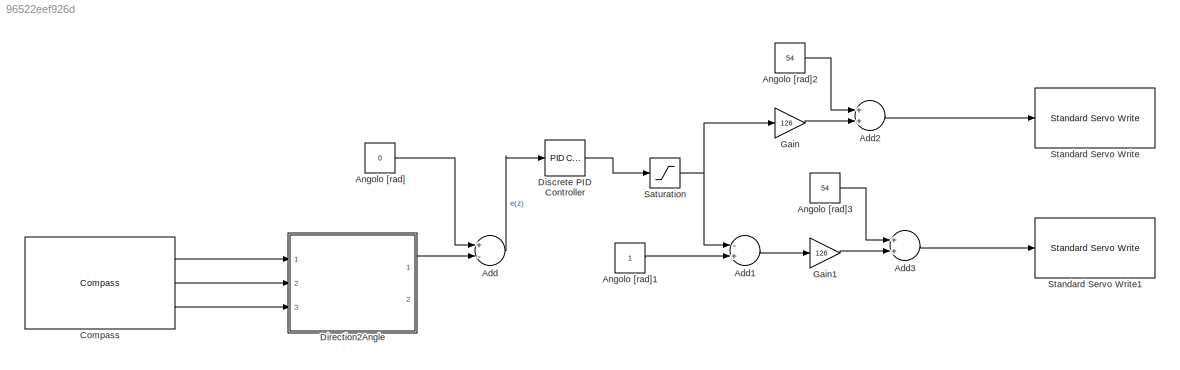
MODEL slx_96522eef926d
KIND model
BLOCK [Sum] Add
  InputSameDT = off
  Inputs = +-
  OutDataTypeStr = Inherit: Inherit via internal rule
  Ports = [2, 1]
  SaturateOnIntegerOverflow = off
BLOCK [Sum] Add1
  InputSameDT = off
  Inputs = -+
  OutDataTypeStr = Inherit: Inherit via internal rule
  Ports = [2, 1]
  SaturateOnIntegerOverflow = off
BLOCK [Sum] Add2
  InputSameDT = off
  OutDataTypeStr = Inherit: Inherit via internal rule
  Ports = [2, 1]
  SaturateOnIntegerOverflow = off
BLOCK [Sum] Add3
  InputSameDT = off
  OutDataTypeStr = Inherit: Inherit via internal rule
  Ports = [2, 1]
  SaturateOnIntegerOverflow = off
BLOCK [Constant] Angolo [rad]
  SampleTime = 0.1
  Value = 0
BLOCK [Constant] Angolo [rad]1
  SampleTime = 0.1
BLOCK [Constant] Angolo [rad]2
  SampleTime = 0.1
  Value = 54
BLOCK [Constant] Angolo [rad]3
  SampleTime = 0.1
  Value = 54
BLOCK [Reference] Compass  REF=SkywardBLIMP/Compass
  Ports = [0, 3]
  SourceBlock = SkywardBLIMP/Compass
  SourceType = Compass
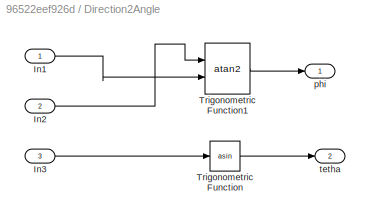
BLOCK [SubSystem] Direction2Angle
  Ports = [3, 2]
  RequestExecContextInheritance = off
BLOCK [Inport] Direction2Angle/In1
  IconDisplay = Port number
BLOCK [Inport] Direction2Angle/In2
  IconDisplay = Port number
  Port = 2
BLOCK [Inport] Direction2Angle/In3
  IconDisplay = Port number
  Port = 3
BLOCK [Trigonometry] Direction2Angle/Trigonometric Function
  Operator = asin
  Ports = [1, 1]
BLOCK [Trigonometry] Direction2Angle/Trigonometric Function1
  Operator = atan2
  Ports = [2, 1]
BLOCK [Outport] Direction2Angle/phi
  IconDisplay = Port number
BLOCK [Outport] Direction2Angle/tetha
  IconDisplay = Port number
  Port = 2
BLOCK [Reference] Discrete PID Controller  REF=simulink/Continuous/PID Controller
  AntiWindupMode = none
  Controller = PID
  D = 2
  DOutDataTypeStr = Inherit: Inherit via internal rule
  DOutMax = []
  DOutMin = []
  DParamDataTypeStr = Inherit: Inherit via internal rule
  DParamMax = []
  DParamMin = []
  DifferentiatorICPrevScaledInput = 0
  DifferentiatorOutDataTypeStr = Inherit: Inherit via internal rule
  DifferentiatorOutMax = []
  DifferentiatorOutMin = []
  ExternalReset = none
  FilterContinuousStateAttributes = ''
  FilterMethod = Forward Euler
  FilterOutDataTypeStr = Inherit: Inherit via internal rule
  FilterOutMax = []
  FilterOutMin = []
  FilterRTWStateStorageClass = Auto
  FilterStateMustResolveToSignalObject = off
  Form = Parallel
  I = 0.2
  IOutDataTypeStr = Inherit: Inherit via internal rule
  IOutMax = []
  IOutMin = []
  IParamDataTypeStr = Inherit: Inherit via internal rule
  IParamMax = []
  IParamMin = []
  IgnoreLimit = off
  InitialConditionForFilter = 0
  InitialConditionForIntegrator = 0
  InitialConditionSource = internal
  IntegratorContinuousStateAttributes = ''
  IntegratorMethod = Trapezoidal
  IntegratorOutDataTypeStr = Inherit: Inherit via internal rule
  IntegratorOutMax = []
  IntegratorOutMin = []
  IntegratorRTWStateStorageClass = Auto
  IntegratorStateMustResolveToSignalObject = off
  Kb = 1
  KbOutDataTypeStr = Inherit: Inherit via internal rule
  KbOutMax = []
  KbOutMin = []
  KbParamDataTypeStr = Inherit: Inherit via internal rule
  KbParamMax = []
  KbParamMin = []
  Kt = 1
  KtOutDataTypeStr = Inherit: Inherit via internal rule
  KtOutMax = []
  KtOutMin = []
  KtParamDataTypeStr = Inherit: Inherit via internal rule
  KtParamMax = []
  KtParamMin = []
  LimitOutput = off
  LinearizeAsGain = off
  LockScale = off
  LowerSaturationLimit = -inf
  N = 100
  NOutDataTypeStr = Inherit: Inherit via internal rule
  NOutMax = []
  NOutMin = []
  NParamDataTypeStr = Inherit: Inherit via internal rule
  NParamMax = []
  NParamMin = []
  P = 1.5
  POutDataTypeStr = Inherit: Inherit via internal rule
  POutMax = []
  POutMin = []
  PParamDataTypeStr = Inherit: Inherit via internal rule
  PParamMax = []
  PParamMin = []
  Ports = [1, 1]
  RndMeth = Floor
  SampleTime = -1
  SaturateOnIntegerOverflow = off
  SaturationOutDataTypeStr = Inherit: Same as input
  SaturationOutMax = []
  SaturationOutMin = []
  SourceBlock = simulink/Continuous/PID Controller
  SourceType = PID 1dof
  SumAccumDataTypeStr = Inherit: Inherit via internal rule
  SumDAccumDataTypeStr = Inherit: Inherit via internal rule
  SumDOutDataTypeStr = Inherit: Inherit via internal rule
  SumDOutMax = []
  SumDOutMin = []
  SumI1AccumDataTypeStr = Inherit: Inherit via internal rule
  SumI1OutDataTypeStr = Inherit: Inherit via internal rule
  SumI1OutMax = []
  SumI1OutMin = []
  SumI2AccumDataTypeStr = Inherit: Inherit via internal rule
  SumI2OutDataTypeStr = Inherit: Inherit via internal rule
  SumI2OutMax = []
  SumI2OutMin = []
  SumI3AccumDataTypeStr = Inherit: Inherit via internal rule
  SumI3OutDataTypeStr = Inherit: Inherit via internal rule
  SumI3OutMax = []
  SumI3OutMin = []
  SumOutDataTypeStr = Inherit: Inherit via internal rule
  SumOutMax = []
  SumOutMin = []
  TimeDomain = Discrete-time
  TrackingMode = off
  UpperSaturationLimit = inf
  UseFilter = on
  ZeroCross = on
BLOCK [Gain] Gain
  Gain = 126
  OutDataTypeStr = Inherit: Inherit via internal rule
  ParamDataTypeStr = Inherit: Inherit via internal rule
  SaturateOnIntegerOverflow = off
BLOCK [Gain] Gain1
  Gain = 126
  OutDataTypeStr = Inherit: Inherit via internal rule
  ParamDataTypeStr = Inherit: Inherit via internal rule
  SaturateOnIntegerOverflow = off
BLOCK [Saturate] Saturation
  InputPortMap = u0
  LowerLimit = 0
  Ports = [1, 1]
  UpperLimit = 1
BLOCK [Reference] Standard Servo Write  REF=arduinolib/Standard Servo Write
  Ports = [1]
  SourceBlock = arduinolib/Standard Servo Write
  SourceType = Arduino Standard Servo Write
  blockPlatform = arduino
  pinNumber = 4
BLOCK [Reference] Standard Servo Write1  REF=arduinolib/Standard Servo Write
  Ports = [1]
  SourceBlock = arduinolib/Standard Servo Write
  SourceType = Arduino Standard Servo Write
  blockPlatform = arduino
  pinNumber = 9
LINE Add1:1 -> Gain1:1
LINE Add2:1 -> Standard Servo Write:1
LINE Add3:1 -> Standard Servo Write1:1
LINE Add:1 -> Discrete PID Controller:1
LINE Angolo [rad]1:1 -> Add1:2
LINE Angolo [rad]2:1 -> Add2:1
LINE Angolo [rad]3:1 -> Add3:1
LINE Angolo [rad]:1 -> Add:1
LINE Compass:1 -> Direction2Angle:1
LINE Compass:2 -> Direction2Angle:2
LINE Compass:3 -> Direction2Angle:3
LINE Direction2Angle/In1:1 -> Direction2Angle/Trigonometric Function1:2
LINE Direction2Angle/In2:1 -> Direction2Angle/Trigonometric Function1:1
LINE Direction2Angle/In3:1 -> Direction2Angle/Trigonometric Function:1
LINE Direction2Angle/Trigonometric Function1:1 -> Direction2Angle/phi:1
LINE Direction2Angle/Trigonometric Function:1 -> Direction2Angle/tetha:1
LINE Direction2Angle:1 -> Add:2
LINE Discrete PID Controller:1 -> Saturation:1
LINE Gain1:1 -> Add3:2
LINE Gain:1 -> Add2:2
NET Saturation:1 -> Add1:1, Gain:1
note: NET lines group one-source signal fan-out (src -> all destinations, sorted); 1:1 wires keep LINE
